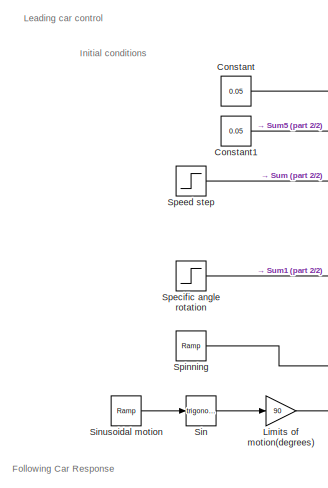
[diagram: root canvas - part 1/2, top left region]
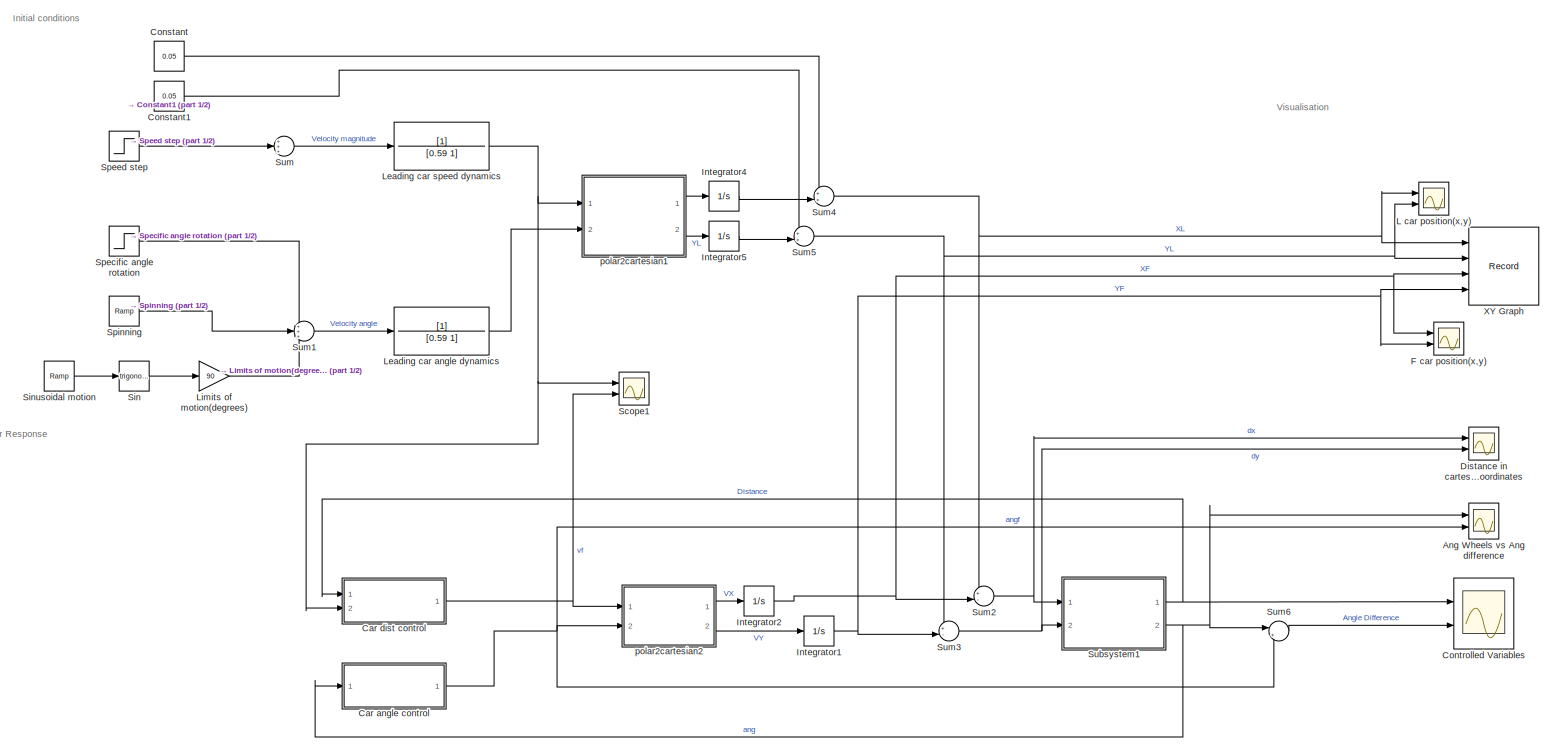
[diagram: root canvas - part 2/2, most of the canvas]
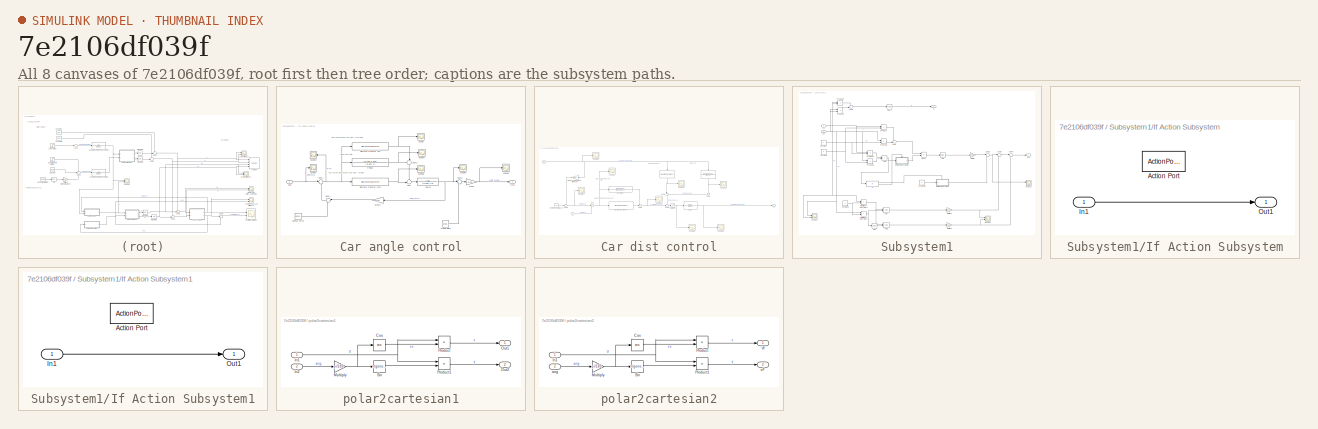
[diagram: thumbnail index - all 8 canvases of the model, root first then tree order]
MODEL slx_7e2106df039f
KIND model
CONFIG AbsTol = auto
CONFIG EnableMultiTasking = off
CONFIG FixedStep = auto
CONFIG MaxStep = auto
CONFIG MinStep = auto
CONFIG RelTol = 1e-3
CONFIG SampleTimeConstraint = Unconstrained
CONFIG SolverName = VariableStepAuto
CONFIG StartTime = 0.0
CONFIG StopTime = 10
BLOCK [Scope] Ang Wheels vs Ang difference 
  Floating = off
  NumInputPorts = 2
  Ports = [2]
  ScopeSpecificationString = Simulink.scopes.TimeScopeBlockCfg('CurrentConfiguration', extmgr.ConfigurationSet(extmgr.Configuration('Core','General UI',true),extmgr.Configuration('Core','Source UI',true),extmgr.Configuration('Sources','WiredSimulink',true,'DataLoggingVariableName','ScopeData8'),extmgr.Configuration('Visuals','Time Domain',true,'SerializedDisplays',{struct('MinYLimReal','-305.14661','MaxYLimReal','233.90518','...<+1715ch>
BLOCK [SubSystem] Car angle control
  Ports = [1, 1]
  RequestExecContextInheritance = off
BLOCK [DiscreteTransferFcn] Car angle control/Discrete Transfer Fcn
  Commented = on
  Denominator = [1 -0.1677]
  InputPortMap = u0
  Numerator = [20.71 -18.86]
  Ports = [1, 1]
  SampleTime = 1/80
BLOCK [DiscreteTransferFcn] Car angle control/Discrete Transfer Fcn1
  Denominator = [1 -0.1677]
  InputPortMap = u0
  Numerator = [13.23 -12.04]
  Ports = [1, 1]
  SampleTime = 1/80
BLOCK [Outport] Car angle control/Out1
BLOCK [TransferFcn] Car angle control/P ideal
  Commented = on
  Denominator = [0.007 1]
  Numerator = [0.145 2.231]
BLOCK [Scope] Car angle control/Scope
  Floating = off
  NumInputPorts = 1
  Ports = [1]
  ScopeSpecificationString = Simulink.scopes.TimeScopeBlockCfg('CurrentConfiguration', extmgr.ConfigurationSet(extmgr.Configuration('Core','General UI',true),extmgr.Configuration('Core','Source UI',true),extmgr.Configuration('Sources','WiredSimulink',true,'DataLoggingVariableName','ScopeData2'),extmgr.Configuration('Visuals','Time Domain',true),extmgr.Configuration('Tools','Plot Navigation',true),extmgr.Configuration('Tools',...<+40ch>
BLOCK [Scope] Car angle control/Scope1
  Floating = off
  NumInputPorts = 1
  Ports = [1]
  ScopeSpecificationString = Simulink.scopes.TimeScopeBlockCfg('CurrentConfiguration', extmgr.ConfigurationSet(extmgr.Configuration('Core','General UI',true),extmgr.Configuration('Core','Source UI',true),extmgr.Configuration('Sources','WiredSimulink',true,'DataLoggingVariableName','ScopeData5'),extmgr.Configuration('Visuals','Time Domain',true,'SerializedDisplays',{struct('MinYLimReal','-15.62488','MaxYLimReal','140.62391','Y...<+1421ch>
BLOCK [Scope] Car angle control/Scope2
  Floating = off
  NameLocation = top
  NumInputPorts = 1
  Ports = [1]
  ScopeSpecificationString = Simulink.scopes.TimeScopeBlockCfg('CurrentConfiguration', extmgr.ConfigurationSet(extmgr.Configuration('Core','General UI',true),extmgr.Configuration('Core','Source UI',true),extmgr.Configuration('Sources','WiredSimulink',true,'DataLoggingVariableName','ScopeData1'),extmgr.Configuration('Visuals','Time Domain',true,'SerializedDisplays',{struct('MinYLimReal','-0.17611','MaxYLimReal','1.58497','YLab...<+1412ch>
BLOCK [Scope] Car angle control/Scope3
  Floating = off
  NumInputPorts = 1
  Ports = [1]
  ScopeSpecificationString = Simulink.scopes.TimeScopeBlockCfg('CurrentConfiguration', extmgr.ConfigurationSet(extmgr.Configuration('Core','General UI',true),extmgr.Configuration('Core','Source UI',true),extmgr.Configuration('Sources','WiredSimulink',true,'DataLoggingVariableName','ScopeData2'),extmgr.Configuration('Visuals','Time Domain',true,'SerializedDisplays',{struct('MinYLimReal','-118.01423','MaxYLimReal','117.67122','...<+1430ch>
BLOCK [Scope] Car angle control/Scope4
  Floating = off
  NumInputPorts = 1
  Ports = [1]
  ScopeSpecificationString = Simulink.scopes.TimeScopeBlockCfg('CurrentConfiguration', extmgr.ConfigurationSet(extmgr.Configuration('Core','General UI',true),extmgr.Configuration('Core','Source UI',true),extmgr.Configuration('Sources','WiredSimulink',true,'DataLoggingVariableName','ScopeData3'),extmgr.Configuration('Visuals','Time Domain',true),extmgr.Configuration('Tools','Plot Navigation',true),extmgr.Configuration('Tools',...<+40ch>
BLOCK [Scope] Car angle control/Scope5
  Floating = off
  NumInputPorts = 1
  Ports = [1]
  ScopeSpecificationString = Simulink.scopes.TimeScopeBlockCfg('CurrentConfiguration', extmgr.ConfigurationSet(extmgr.Configuration('Core','General UI',true),extmgr.Configuration('Core','Source UI',true),extmgr.Configuration('Sources','WiredSimulink',true,'DataLoggingVariableName','ScopeData4'),extmgr.Configuration('Visuals','Time Domain',true),extmgr.Configuration('Tools','Plot Navigation',true),extmgr.Configuration('Tools',...<+40ch>
BLOCK [Scope] Car angle control/Scope6
  Floating = off
  NumInputPorts = 1
  Ports = [1]
  ScopeSpecificationString = Simulink.scopes.TimeScopeBlockCfg('CurrentConfiguration', extmgr.ConfigurationSet(extmgr.Configuration('Core','General UI',true),extmgr.Configuration('Core','Source UI',true),extmgr.Configuration('Sources','WiredSimulink',true,'DataLoggingVariableName','ScopeData5'),extmgr.Configuration('Visuals','Time Domain',true),extmgr.Configuration('Tools','Plot Navigation',true),extmgr.Configuration('Tools',...<+40ch>
BLOCK [RandomNumber] Car angle control/Sensor Error
  Commented = on
  SampleTime = 1/80
  Variance = 4
BLOCK [TransferFcn] Car angle control/Servo
  Denominator = [0.065 1 0]
  Numerator = [76]
BLOCK [Gain] Car angle control/StoW
  Gain = 0.72
BLOCK [Gain] Car angle control/StoW1
  Gain = 0.72
  NameLocation = top
BLOCK [Sum] Car angle control/Sum
  Inputs = ++|
  Ports = [2, 1]
BLOCK [Sum] Car angle control/Sum1
  Inputs = |+-
  Ports = [2, 1]
BLOCK [Sum] Car angle control/Sum2
  Inputs = ++|
  NameLocation = left
  Ports = [2, 1]
BLOCK [Sum] Car angle control/Sum3
  Inputs = |++
  Ports = [2, 1]
BLOCK [Sum] Car angle control/Sum4
  Inputs = |++
  NameLocation = top
  Ports = [2, 1]
BLOCK [RandomNumber] Car angle control/Wheel Slack
  Commented = on
  SampleTime = 0.001
  Seed = 123123
  Variance = 3
BLOCK [Inport] Car angle control/ang
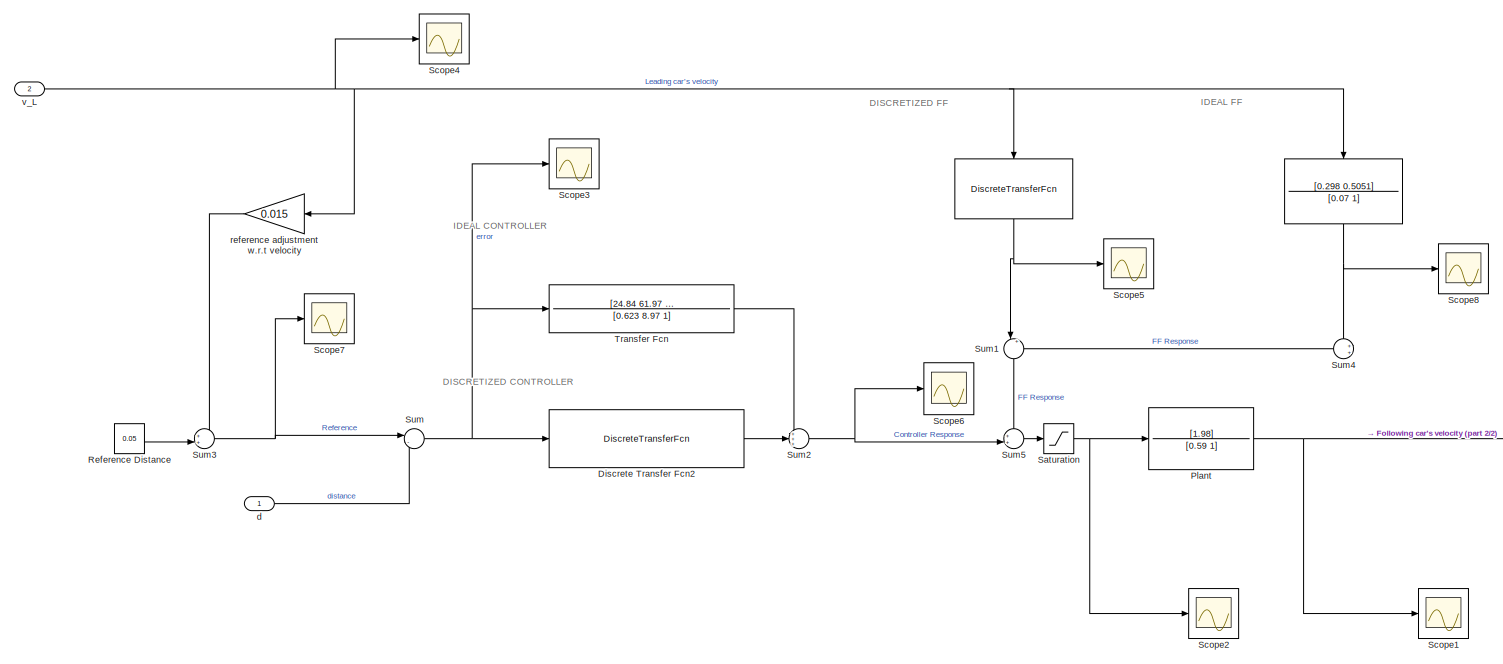
[diagram: Car dist control - part 1/2, most of the canvas]
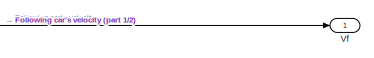
[diagram: Car dist control - part 2/2, bottom right region]
BLOCK [SubSystem] Car dist control
  Ports = [2, 1]
  RequestExecContextInheritance = off
BLOCK [TransferFcn] Car dist control/ 
  Commented = on
  Denominator = [0.07 1]
  NameLocation = right
  Numerator = [0.298 0.5051]
BLOCK [DiscreteTransferFcn] Car dist control/  
  Denominator = [1 -0.8365]
  InputPortMap = u0
  NameLocation = right
  Numerator = [4.299 -4.215]
  Ports = [1, 1]
  SampleTime = 1/80
BLOCK [DiscreteTransferFcn] Car dist control/Discrete Transfer Fcn2
  Denominator = [1 -1.835 0.8353]
  InputPortMap = u0
  Numerator = [36.99 -72.91 35.93]
  Ports = [1, 1]
  SampleTime = 1/80
BLOCK [TransferFcn] Car dist control/Plant
  Denominator = [0.59 1]
  Numerator = [1.98]
BLOCK [Constant] Car dist control/Reference Distance
  Value = 0.05
BLOCK [Saturate] Car dist control/Saturation
  LowerLimit = -8
  UpperLimit = 8
BLOCK [Scope] Car dist control/Scope1
  Floating = off
  NumInputPorts = 1
  Ports = [1]
  ScopeSpecificationString = Simulink.scopes.TimeScopeBlockCfg('CurrentConfiguration', extmgr.ConfigurationSet(extmgr.Configuration('Core','General UI',true),extmgr.Configuration('Core','Source UI',true),extmgr.Configuration('Sources','WiredSimulink',true,'DataLoggingVariableName','ScopeData2'),extmgr.Configuration('Visuals','Time Domain',true,'SerializedDisplays',{struct('MinYLimReal','-1.97884','MaxYLimReal','17.80955','YLa...<+1440ch>
BLOCK [Scope] Car dist control/Scope2
  Floating = off
  NumInputPorts = 1
  Ports = [1]
  ScopeSpecificationString = Simulink.scopes.TimeScopeBlockCfg('CurrentConfiguration', extmgr.ConfigurationSet(extmgr.Configuration('Core','General UI',true),extmgr.Configuration('Core','Source UI',true),extmgr.Configuration('Sources','WiredSimulink',true,'DataLoggingVariableName','ScopeData3'),extmgr.Configuration('Visuals','Time Domain',true,'SerializedDisplays',{struct('MinYLimReal','-0.95809','MaxYLimReal','8.62277','YLab...<+1416ch>
BLOCK [Scope] Car dist control/Scope3
  Floating = off
  NumInputPorts = 1
  Ports = [1]
  ScopeSpecificationString = Simulink.scopes.TimeScopeBlockCfg('CurrentConfiguration', extmgr.ConfigurationSet(extmgr.Configuration('Core','General UI',true),extmgr.Configuration('Core','Source UI',true),extmgr.Configuration('Sources','WiredSimulink',true,'DataLoggingVariableName','ScopeData6'),extmgr.Configuration('Visuals','Time Domain',true,'SerializedDisplays',{struct('MinYLimReal','-0.2585','MaxYLimReal','1.3178','YLabel...<+1410ch>
BLOCK [Scope] Car dist control/Scope4
  Floating = off
  NumInputPorts = 1
  Ports = [1]
  ScopeSpecificationString = Simulink.scopes.TimeScopeBlockCfg('CurrentConfiguration', extmgr.ConfigurationSet(extmgr.Configuration('Core','General UI',true),extmgr.Configuration('Core','Source UI',true),extmgr.Configuration('Sources','WiredSimulink',true,'DataLoggingVariableName','ScopeData3'),extmgr.Configuration('Visuals','Time Domain',true,'SerializedDisplays',{struct('MinYLimReal','-0.0019','MaxYLimReal','0.51712','YLabe...<+1432ch>
BLOCK [Scope] Car dist control/Scope5
  Floating = off
  NumInputPorts = 1
  Ports = [1]
  ScopeSpecificationString = Simulink.scopes.TimeScopeBlockCfg('CurrentConfiguration', extmgr.ConfigurationSet(extmgr.Configuration('Core','General UI',true),extmgr.Configuration('Core','Source UI',true),extmgr.Configuration('Sources','WiredSimulink',true,'DataLoggingVariableName','ScopeData1'),extmgr.Configuration('Visuals','Time Domain',true,'SerializedDisplays',{struct('MinYLimReal','-2.68687','MaxYLimReal','24.18188','YLa...<+1432ch>
BLOCK [Scope] Car dist control/Scope6
  Floating = off
  NumInputPorts = 1
  Ports = [1]
  ScopeSpecificationString = Simulink.scopes.TimeScopeBlockCfg('CurrentConfiguration', extmgr.ConfigurationSet(extmgr.Configuration('Core','General UI',true),extmgr.Configuration('Core','Source UI',true),extmgr.Configuration('Sources','WiredSimulink',true,'DataLoggingVariableName','ScopeData2'),extmgr.Configuration('Visuals','Time Domain',true,'SerializedDisplays',{struct('MinYLimReal','-0.72339','MaxYLimReal','0.44678','YLab...<+1433ch>
BLOCK [Scope] Car dist control/Scope7
  Floating = off
  NumInputPorts = 1
  Ports = [1]
  ScopeSpecificationString = Simulink.scopes.TimeScopeBlockCfg('CurrentConfiguration', extmgr.ConfigurationSet(extmgr.Configuration('Core','General UI',true),extmgr.Configuration('Core','Source UI',true),extmgr.Configuration('Sources','WiredSimulink',true,'DataLoggingVariableName','ScopeData3'),extmgr.Configuration('Visuals','Time Domain',true,'SerializedDisplays',{struct('MinYLimReal','-0.14125','MaxYLimReal','0.51477','YLab...<+1420ch>
BLOCK [Scope] Car dist control/Scope8
  Floating = off
  NumInputPorts = 1
  Ports = [1]
  ScopeSpecificationString = Simulink.scopes.TimeScopeBlockCfg('CurrentConfiguration', extmgr.ConfigurationSet(extmgr.Configuration('Core','General UI',true),extmgr.Configuration('Core','Source UI',true),extmgr.Configuration('Sources','WiredSimulink',true,'DataLoggingVariableName','ScopeData1'),extmgr.Configuration('Visuals','Time Domain',true,'SerializedDisplays',{struct('MinYLimReal','-2.68687','MaxYLimReal','24.18188','YLa...<+1432ch>
BLOCK [Sum] Car dist control/Sum
  Inputs = |-+
  Ports = [2, 1]
BLOCK [Sum] Car dist control/Sum1
  Inputs = |++
  NameLocation = left
  Ports = [2, 1]
BLOCK [Sum] Car dist control/Sum2
  Inputs = +++
  Ports = [3, 1]
BLOCK [Sum] Car dist control/Sum3
  Inputs = ++|
  Ports = [2, 1]
BLOCK [Sum] Car dist control/Sum4
  Inputs = ++|
  NameLocation = top
  Ports = [2, 1]
BLOCK [Sum] Car dist control/Sum5
  Inputs = ++|
  Ports = [2, 1]
BLOCK [TransferFcn] Car dist control/Transfer Fcn
  Commented = on
  Denominator = [0.623 8.97 1]
  Numerator = [24.84 61.97 33.68]
BLOCK [Outport] Car dist control/Vf
BLOCK [Inport] Car dist control/d
BLOCK [Gain] Car dist control/reference adjustment w.r.t velocity
  Gain = 0.015
  NameLocation = top
BLOCK [Inport] Car dist control/v_L
  Port = 2
BLOCK [Constant] Constant
  Value = 0.05
BLOCK [Constant] Constant1
  Commented = on
  Value = 0.05
BLOCK [Scope] Controlled Variables
  Floating = off
  NumInputPorts = 2
  Ports = [2]
  ScopeSpecificationString = Simulink.scopes.TimeScopeBlockCfg('CurrentConfiguration', extmgr.ConfigurationSet(extmgr.Configuration('Core','General UI',true),extmgr.Configuration('Core','Source UI',true),extmgr.Configuration('Sources','WiredSimulink',true,'DataLoggingVariableName','ScopeData1'),extmgr.Configuration('Visuals','Time Domain',true,'SerializedDisplays',{struct('MinYLimReal','-0.02482','MaxYLimReal','0.22342','YLab...<+1718ch>
BLOCK [Scope] Distance in cartessian coordinates
  Floating = off
  NumInputPorts = 2
  Ports = [2]
  ScopeSpecificationString = Simulink.scopes.TimeScopeBlockCfg('CurrentConfiguration', extmgr.ConfigurationSet(extmgr.Configuration('Core','General UI',true),extmgr.Configuration('Core','Source UI',true),extmgr.Configuration('Sources','WiredSimulink',true,'DataLoggingVariableName','ScopeData5'),extmgr.Configuration('Visuals','Time Domain',true,'SerializedDisplays',{struct('MinYLimReal','-2.52714','MaxYLimReal','3.20409','YLab...<+1441ch>
BLOCK [Scope] F car position(x,y)
  Floating = off
  NumInputPorts = 2
  Ports = [2]
  ScopeSpecificationString = Simulink.scopes.TimeScopeBlockCfg('CurrentConfiguration', extmgr.ConfigurationSet(extmgr.Configuration('Core','General UI',true),extmgr.Configuration('Core','Source UI',true),extmgr.Configuration('Sources','WiredSimulink',true,'DataLoggingVariableName','ScopeData7'),extmgr.Configuration('Visuals','Time Domain',true,'SerializedDisplays',{struct('MinYLimReal','-12.38209','MaxYLimReal','111.43885','Y...<+1497ch>
BLOCK [Integrator] Integrator1
  Ports = [1, 1]
BLOCK [Integrator] Integrator2
  Ports = [1, 1]
BLOCK [Integrator] Integrator4
  Ports = [1, 1]
BLOCK [Integrator] Integrator5
  Ports = [1, 1]
BLOCK [Scope] L car position(x,y)
  Floating = off
  NameLocation = top
  NumInputPorts = 2
  Ports = [2]
  ScopeSpecificationString = Simulink.scopes.TimeScopeBlockCfg('CurrentConfiguration', extmgr.ConfigurationSet(extmgr.Configuration('Core','General UI',true),extmgr.Configuration('Core','Source UI',true),extmgr.Configuration('Sources','WiredSimulink',true,'DataLoggingVariableName','ScopeData6'),extmgr.Configuration('Visuals','Time Domain',true,'SerializedDisplays',{struct('MinYLimReal','-11.76875','MaxYLimReal','105.91875','Y...<+1524ch>
BLOCK [TransferFcn] Leading car angle dynamics
  Denominator = [0.59 1]
BLOCK [TransferFcn] Leading car speed dynamics
  Denominator = [0.59 1]
BLOCK [Gain] Limits of motion(degrees)
  Gain = 90
BLOCK [Scope] Scope1
  Floating = off
  NumInputPorts = 2
  Ports = [2]
  ScopeSpecificationString = Simulink.scopes.TimeScopeBlockCfg('CurrentConfiguration', extmgr.ConfigurationSet(extmgr.Configuration('Core','General UI',true),extmgr.Configuration('Core','Source UI',true),extmgr.Configuration('Sources','WiredSimulink',true,'DataLoggingVariableName','ScopeData4'),extmgr.Configuration('Visuals','Time Domain',true,'SerializedDisplays',{struct('MinYLimReal','-1.40878','MaxYLimReal','12.67899','YLa...<+1394ch>
BLOCK [Trigonometry] Sin
  Ports = [1, 1]
BLOCK [Reference] Sinusoidal motion  REF=simulink/Sources/Ramp
  Commented = on
  Ports = [0, 1]
  SourceBlock = simulink/Sources/Ramp
  SourceProductBaseCode = SL
  SourceType = Ramp
BLOCK [Step] Specific angle rotation
  After = 5
  Commented = on
  SampleTime = 0
  Time = 3
BLOCK [Step] Speed step
  After = 10
  SampleTime = 1
  Time = 0
BLOCK [Reference] Spinning  REF=simulink/Sources/Ramp
  Commented = on
  Ports = [0, 1]
  SourceBlock = simulink/Sources/Ramp
  SourceProductBaseCode = SL
  SourceType = Ramp
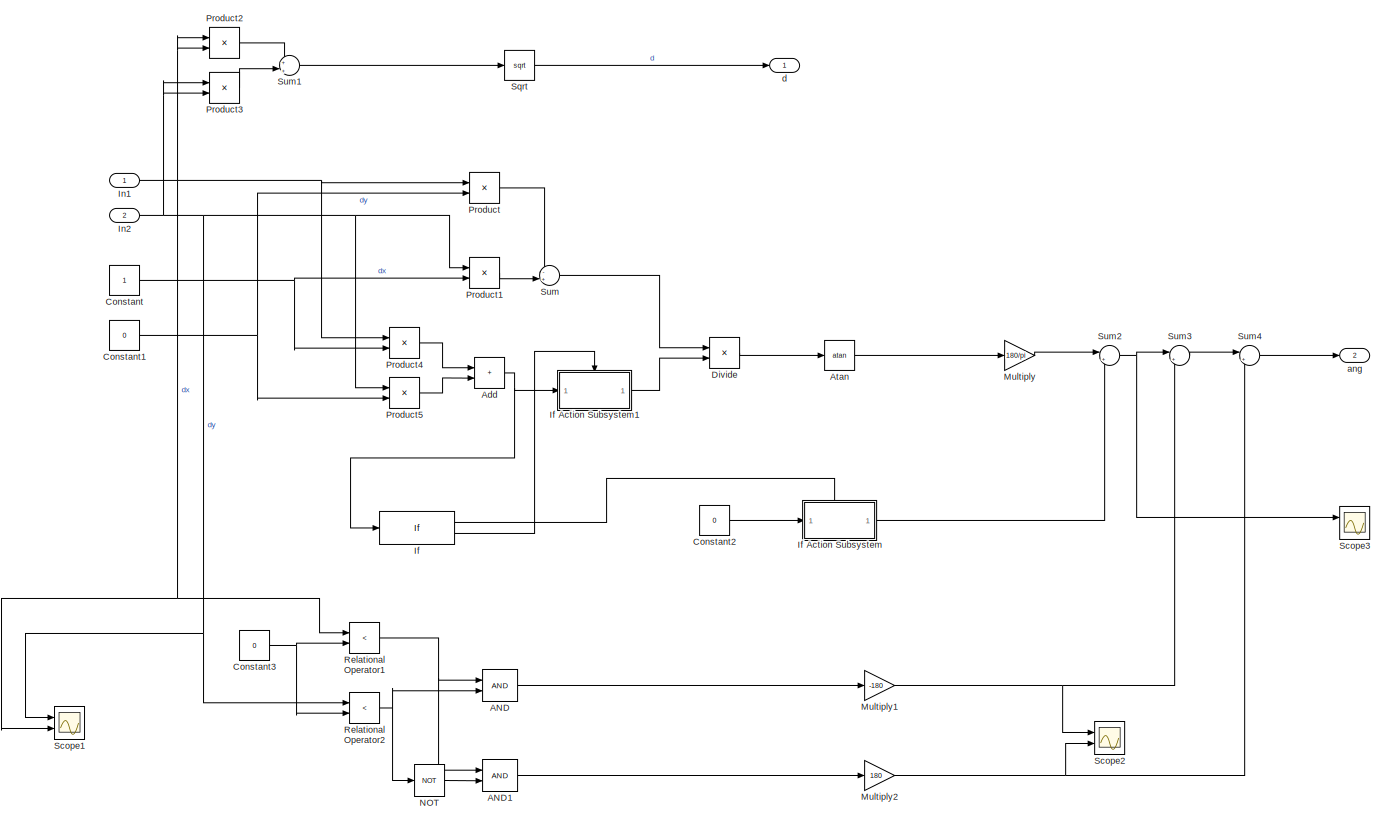
[diagram: Subsystem1 - part 1/1, most of the canvas]
BLOCK [SubSystem] Subsystem1
  Ports = [2, 2]
  RequestExecContextInheritance = off
BLOCK [Logic] Subsystem1/AND
  AllPortsSameDT = off
  IconShape = distinctive
  OutDataTypeStr = boolean
  Ports = [2, 1]
BLOCK [Logic] Subsystem1/AND1
  AllPortsSameDT = off
  IconShape = distinctive
  OutDataTypeStr = boolean
  Ports = [2, 1]
BLOCK [Sum] Subsystem1/Add
  IconShape = rectangular
  Ports = [2, 1]
BLOCK [Trigonometry] Subsystem1/Atan
  Operator = atan
  Ports = [1, 1]
BLOCK [Constant] Subsystem1/Constant
BLOCK [Constant] Subsystem1/Constant1
  Value = 0
BLOCK [Constant] Subsystem1/Constant2
  Value = 0
BLOCK [Constant] Subsystem1/Constant3
  Value = 0
BLOCK [Product] Subsystem1/Divide
  Inputs = */
  Ports = [2, 1]
BLOCK [If] Subsystem1/If
  IfExpression = u1 == 0
  Ports = [1, 2]
BLOCK [SubSystem] Subsystem1/If Action Subsystem
  Ports = [1, 1, 0, 0, 0, 0, 0, 1]
  RequestExecContextInheritance = off
  TreatAsAtomicUnit = on
BLOCK [ActionPort] Subsystem1/If Action Subsystem/Action Port
  ActionPortLabel = if(u1 == 0)
BLOCK [Inport] Subsystem1/If Action Subsystem/In1
BLOCK [Outport] Subsystem1/If Action Subsystem/Out1
BLOCK [SubSystem] Subsystem1/If Action Subsystem1
  Ports = [1, 1, 0, 0, 0, 0, 0, 1]
  RequestExecContextInheritance = off
  TreatAsAtomicUnit = on
BLOCK [ActionPort] Subsystem1/If Action Subsystem1/Action Port
  ActionPortLabel = else
BLOCK [Inport] Subsystem1/If Action Subsystem1/In1
BLOCK [Outport] Subsystem1/If Action Subsystem1/Out1
BLOCK [Inport] Subsystem1/In1
  IconDisplay = Signal name
BLOCK [Inport] Subsystem1/In2
  IconDisplay = Signal name
  Port = 2
BLOCK [Gain] Subsystem1/Multiply
  Gain = 180/pi
BLOCK [Gain] Subsystem1/Multiply1
  Gain = -180
BLOCK [Gain] Subsystem1/Multiply2
  Gain = 180
BLOCK [Logic] Subsystem1/NOT
  AllPortsSameDT = off
  IconShape = distinctive
  Operator = NOT
  OutDataTypeStr = boolean
  Ports = [1, 1]
BLOCK [Product] Subsystem1/Product
  Ports = [2, 1]
BLOCK [Product] Subsystem1/Product1
  Ports = [2, 1]
BLOCK [Product] Subsystem1/Product2
  Ports = [2, 1]
BLOCK [Product] Subsystem1/Product3
  Ports = [2, 1]
BLOCK [Product] Subsystem1/Product4
  Ports = [2, 1]
BLOCK [Product] Subsystem1/Product5
  Ports = [2, 1]
BLOCK [RelationalOperator] Subsystem1/Relational Operator1
  InputSameDT = off
  Operator = <
  Ports = [2, 1]
  RndMeth = Simplest
BLOCK [RelationalOperator] Subsystem1/Relational Operator2
  InputSameDT = off
  Operator = <
  Ports = [2, 1]
  RndMeth = Simplest
BLOCK [Scope] Subsystem1/Scope1
  Floating = off
  NumInputPorts = 2
  Ports = [2]
  ScopeSpecificationString = Simulink.scopes.TimeScopeBlockCfg('CurrentConfiguration', extmgr.ConfigurationSet(extmgr.Configuration('Core','General UI',true),extmgr.Configuration('Core','Source UI',true),extmgr.Configuration('Sources','WiredSimulink',true,'DataLoggingVariableName','ScopeData5'),extmgr.Configuration('Visuals','Time Domain',true,'SerializedDisplays',{struct('MinYLimReal','-0.05815','MaxYLimReal','0.52337','YLab...<+1439ch>
BLOCK [Scope] Subsystem1/Scope2
  Floating = off
  NumInputPorts = 2
  Ports = [2]
  ScopeSpecificationString = Simulink.scopes.TimeScopeBlockCfg('CurrentConfiguration', extmgr.ConfigurationSet(extmgr.Configuration('Core','General UI',true),extmgr.Configuration('Core','Source UI',true),extmgr.Configuration('Sources','WiredSimulink',true,'DataLoggingVariableName','ScopeData4'),extmgr.Configuration('Visuals','Time Domain',true,'SerializedDisplays',{struct('MinYLimReal','-1.00000','MaxYLimReal','1.00000','YLab...<+1454ch>
BLOCK [Scope] Subsystem1/Scope3
  Floating = off
  NumInputPorts = 2
  Ports = [2]
  ScopeSpecificationString = Simulink.scopes.TimeScopeBlockCfg('CurrentConfiguration', extmgr.ConfigurationSet(extmgr.Configuration('Core','General UI',true),extmgr.Configuration('Core','Source UI',true),extmgr.Configuration('Sources','WiredSimulink',true,'DataLoggingVariableName','ScopeData6'),extmgr.Configuration('Visuals','Time Domain',true,'SerializedDisplays',{struct('MinYLimReal','-82.82495','MaxYLimReal','73.8447','YLa...<+1453ch>
BLOCK [Sqrt] Subsystem1/Sqrt
BLOCK [Sum] Subsystem1/Sum
  Inputs = -+|
  Ports = [2, 1]
BLOCK [Sum] Subsystem1/Sum1
  Inputs = +|+
  Ports = [2, 1]
BLOCK [Sum] Subsystem1/Sum2
  Inputs = |++
  Ports = [2, 1]
BLOCK [Sum] Subsystem1/Sum3
  Inputs = |++
  Ports = [2, 1]
BLOCK [Sum] Subsystem1/Sum4
  Inputs = |++
  Ports = [2, 1]
BLOCK [Outport] Subsystem1/ang
  IconDisplay = Signal name
  Port = 2
BLOCK [Outport] Subsystem1/d
  IconDisplay = Signal name
BLOCK [Sum] Sum
  Inputs = +++
  Ports = [3, 1]
BLOCK [Sum] Sum1
  Inputs = +++
  Ports = [3, 1]
BLOCK [Sum] Sum2
  Inputs = +-|
  Ports = [2, 1]
BLOCK [Sum] Sum3
  Inputs = +-|
  Ports = [2, 1]
BLOCK [Sum] Sum4
  Inputs = ++|
  Ports = [2, 1]
BLOCK [Sum] Sum5
  Inputs = ++|
  Ports = [2, 1]
BLOCK [Sum] Sum6
  Inputs = |+-
  Ports = [2, 1]
BLOCK [Record] XY Graph
  CompatibilityTag = XY
  FileSettingsInternal = {"entries":[{"content":{"excelSettings":{"content":{},"type":"Streamout.ExcelSettings"}},"type":"Streamout.FileSettingStorage","uuid":"1f241d09-22e1-462e-9762-0058fec7610a"}],"packageUris":["http://schema.mathworks.com/mf0/streamout_blocks/R2020a"],"version":"1.0"}
  Layout = [1 1]
  Ports = [4]
  SignalsInternal = {"entries":[{"content":{"signals":[{"content":{"blockPath":["platooning_sim/XY Graph"],"channel":[],"dimensions":[1],"domain":"platooning_sim/XY Graph","lineColor":"#a2142f","plots":[1],"port":1,"sid":[""],"signalID":235,"signalName":"XL"},"type":"RecordBlkView.Signal","uuid":"b307e947-2b89-47f2-ab75-c2c398885e15"},{"content":{"blockPath":["platooning_sim/XY Graph"],"channel":[],"dimensions":[1],"...<+939ch>
  VisualizationBindings = {"xyplotplugin":{"info":[{"series":[{"bindingParametersList":[{"parameter":"X-Axis","signalID":235,"signalName":"XL"},{"parameter":"Y-Axis","signalID":239,"signalName":"YL"}],"seriesID":56638},{"bindingParametersList":[{"parameter":"X-Axis","signalID":243,"signalName":"XF"},{"parameter":"Y-Axis","signalID":247,"signalName":"YF"}],"seriesID":17436}],"subplotID":1}]}}
BLOCK [SubSystem] polar2cartesian1
  Ports = [2, 2]
  RequestExecContextInheritance = off
BLOCK [Trigonometry] polar2cartesian1/Cos
  Operator = cos
  Ports = [1, 1]
BLOCK [Inport] polar2cartesian1/In1
  IconDisplay = Signal name
BLOCK [Inport] polar2cartesian1/In2
  IconDisplay = Signal name
  Port = 2
BLOCK [Gain] polar2cartesian1/Multiply
  Gain = pi/180
BLOCK [Outport] polar2cartesian1/Out1
  IconDisplay = Signal name
BLOCK [Outport] polar2cartesian1/Out2
  IconDisplay = Signal name
  Port = 2
BLOCK [Product] polar2cartesian1/Product
  Ports = [2, 1]
BLOCK [Product] polar2cartesian1/Product1
  Ports = [2, 1]
BLOCK [Trigonometry] polar2cartesian1/Sin
  Ports = [1, 1]
BLOCK [SubSystem] polar2cartesian2
  Ports = [2, 2]
  RequestExecContextInheritance = off
BLOCK [Trigonometry] polar2cartesian2/Cos
  Operator = cos
  Ports = [1, 1]
BLOCK [Inport] polar2cartesian2/In1
  IconDisplay = Signal name
BLOCK [Gain] polar2cartesian2/Multiply
  Gain = pi/180
BLOCK [Product] polar2cartesian2/Product
  Ports = [2, 1]
BLOCK [Product] polar2cartesian2/Product1
  Ports = [2, 1]
BLOCK [Trigonometry] polar2cartesian2/Sin
  Ports = [1, 1]
BLOCK [Outport] polar2cartesian2/Vf
  IconDisplay = Signal name
BLOCK [Inport] polar2cartesian2/ang
  IconDisplay = Signal name
  Port = 2
BLOCK [Outport] polar2cartesian2/vF
  IconDisplay = Signal name
  Port = 2
ANNOTATION (root): Following Car Response
ANNOTATION (root): Initial conditions
ANNOTATION (root): Leading car control
ANNOTATION (root): Visualisation
ANNOTATION Car angle control: Corrected discretized controller (stable)
ANNOTATION Car angle control: Discretized ideal controller (unstable)
ANNOTATION Car angle control: Ideal controller
ANNOTATION Car dist control: DISCRETIZED CONTROLLER
ANNOTATION Car dist control: DISCRETIZED FF
ANNOTATION Car dist control: IDEAL CONTROLLER
ANNOTATION Car dist control: IDEAL FF
NET Car angle control/Discrete Transfer Fcn1:1 -> Car angle control/Scope5:1, Car angle control/Sum:2
NET Car angle control/Discrete Transfer Fcn:1 -> Car angle control/Scope:1, Car angle control/Sum2:2
NET Car angle control/P ideal:1 -> Car angle control/Scope4:1, Car angle control/Sum2:1
LINE Car angle control/Sensor Error:1 -> Car angle control/Sum4:2
NET Car angle control/Servo:1 -> Car angle control/Scope6:1, Car angle control/StoW1:1, Car angle control/Sum3:1
LINE Car angle control/StoW1:1 -> Car angle control/Sum4:1
NET Car angle control/StoW:1 -> Car angle control/Out1:1, Car angle control/Scope3:1
NET Car angle control/Sum1:1 -> Car angle control/Discrete Transfer Fcn1:1, Car angle control/Discrete Transfer Fcn:1, Car angle control/P ideal:1, Car angle control/Scope2:1
LINE Car angle control/Sum2:1 -> Car angle control/Sum:1
LINE Car angle control/Sum3:1 -> Car angle control/StoW:1
LINE Car angle control/Sum4:1 -> Car angle control/Sum1:2
LINE Car angle control/Sum:1 -> Car angle control/Servo:1
LINE Car angle control/Wheel Slack:1 -> Car angle control/Sum3:2
NET Car angle control/ang:1 -> Car angle control/Scope1:1, Car angle control/Sum1:1
NET Car angle control:1 -> Ang Wheels vs Ang difference :2, Sum6:2, polar2cartesian2:2
NET Car dist control/  :1 -> Car dist control/Scope5:1, Car dist control/Sum1:1
NET Car dist control/ :1 -> Car dist control/Scope8:1, Car dist control/Sum4:1
LINE Car dist control/Discrete Transfer Fcn2:1 -> Car dist control/Sum2:2
NET Car dist control/Plant:1 -> Car dist control/Scope1:1, Car dist control/Vf:1
LINE Car dist control/Reference Distance:1 -> Car dist control/Sum3:2
NET Car dist control/Saturation:1 -> Car dist control/Plant:1, Car dist control/Scope2:1
LINE Car dist control/Sum1:1 -> Car dist control/Sum5:1
NET Car dist control/Sum2:1 -> Car dist control/Scope6:1, Car dist control/Sum5:2
NET Car dist control/Sum3:1 -> Car dist control/Scope7:1, Car dist control/Sum:1
LINE Car dist control/Sum4:1 -> Car dist control/Sum1:2
LINE Car dist control/Sum5:1 -> Car dist control/Saturation:1
NET Car dist control/Sum:1 -> Car dist control/Discrete Transfer Fcn2:1, Car dist control/Scope3:1, Car dist control/Transfer Fcn:1
LINE Car dist control/Transfer Fcn:1 -> Car dist control/Sum2:1
LINE Car dist control/d:1 -> Car dist control/Sum:2
LINE Car dist control/reference adjustment w.r.t velocity:1 -> Car dist control/Sum3:1
NET Car dist control/v_L:1 -> Car dist control/  :1, Car dist control/ :1, Car dist control/Scope4:1, Car dist control/reference adjustment w.r.t velocity:1
NET Car dist control:1 -> Scope1:2, polar2cartesian2:1
LINE Constant1:1 -> Sum5:1
LINE Constant:1 -> Sum4:1
NET Integrator1:1 -> F car position(x,y):2, Sum3:2, XY Graph:4
NET Integrator2:1 -> F car position(x,y):1, Sum2:2, XY Graph:3
LINE Integrator4:1 -> Sum4:2
LINE Integrator5:1 -> Sum5:2
LINE Leading car angle dynamics:1 -> polar2cartesian1:2
NET Leading car speed dynamics:1 -> Car dist control:2, Scope1:1, polar2cartesian1:1
LINE Limits of motion(degrees):1 -> Sum1:3
LINE Sin:1 -> Limits of motion(degrees):1
LINE Sinusoidal motion:1 -> Sin:1
LINE Specific angle rotation:1 -> Sum1:1
LINE Speed step:1 -> Sum:2
LINE Spinning:1 -> Sum1:2
LINE Subsystem1/AND1:1 -> Subsystem1/Multiply2:1
LINE Subsystem1/AND:1 -> Subsystem1/Multiply1:1
NET Subsystem1/Add:1 -> Subsystem1/If Action Subsystem1:1, Subsystem1/If:1
LINE Subsystem1/Atan:1 -> Subsystem1/Multiply:1
NET Subsystem1/Constant1:1 -> Subsystem1/Product5:2, Subsystem1/Product:2
LINE Subsystem1/Constant2:1 -> Subsystem1/If Action Subsystem:1
NET Subsystem1/Constant3:1 -> Subsystem1/Relational Operator1:2, Subsystem1/Relational Operator2:2
NET Subsystem1/Constant:1 -> Subsystem1/Product1:2, Subsystem1/Product4:2
LINE Subsystem1/Divide:1 -> Subsystem1/Atan:1
LINE Subsystem1/If Action Subsystem/In1:1 -> Subsystem1/If Action Subsystem/Out1:1
LINE Subsystem1/If Action Subsystem1/In1:1 -> Subsystem1/If Action Subsystem1/Out1:1
LINE Subsystem1/If Action Subsystem1:1 -> Subsystem1/Divide:2
LINE Subsystem1/If Action Subsystem:1 -> Subsystem1/Sum2:2
LINE Subsystem1/If:1 -> Subsystem1/If Action Subsystem:ifaction
LINE Subsystem1/If:2 -> Subsystem1/If Action Subsystem1:ifaction
NET Subsystem1/In1:1 -> Subsystem1/Product2:1, Subsystem1/Product2:2, Subsystem1/Product4:1, Subsystem1/Product:1, Subsystem1/Relational Operator1:1, Subsystem1/Scope1:2
NET Subsystem1/In2:1 -> Subsystem1/Product1:1, Subsystem1/Product3:1, Subsystem1/Product3:2, Subsystem1/Product5:1, Subsystem1/Relational Operator2:1, Subsystem1/Scope1:1
NET Subsystem1/Multiply1:1 -> Subsystem1/Scope2:1, Subsystem1/Sum3:2
NET Subsystem1/Multiply2:1 -> Subsystem1/Scope2:2, Subsystem1/Sum4:2
LINE Subsystem1/Multiply:1 -> Subsystem1/Sum2:1
LINE Subsystem1/NOT:1 -> Subsystem1/AND1:2
LINE Subsystem1/Product1:1 -> Subsystem1/Sum:2
LINE Subsystem1/Product2:1 -> Subsystem1/Sum1:1
LINE Subsystem1/Product3:1 -> Subsystem1/Sum1:2
LINE Subsystem1/Product4:1 -> Subsystem1/Add:1
LINE Subsystem1/Product5:1 -> Subsystem1/Add:2
LINE Subsystem1/Product:1 -> Subsystem1/Sum:1
NET Subsystem1/Relational Operator1:1 -> Subsystem1/AND1:1, Subsystem1/AND:1
NET Subsystem1/Relational Operator2:1 -> Subsystem1/AND:2, Subsystem1/NOT:1
LINE Subsystem1/Sqrt:1 -> Subsystem1/d:1
LINE Subsystem1/Sum1:1 -> Subsystem1/Sqrt:1
NET Subsystem1/Sum2:1 -> Subsystem1/Scope3:1, Subsystem1/Sum3:1
LINE Subsystem1/Sum3:1 -> Subsystem1/Sum4:1
LINE Subsystem1/Sum4:1 -> Subsystem1/ang:1
LINE Subsystem1/Sum:1 -> Subsystem1/Divide:1
NET Subsystem1:1 -> Car dist control:1, Controlled Variables:1
NET Subsystem1:2 -> Ang Wheels vs Ang difference :1, Car angle control:1, Sum6:1
LINE Sum1:1 -> Leading car angle dynamics:1
NET Sum2:1 -> Distance in cartessian coordinates:1, Subsystem1:1
NET Sum3:1 -> Distance in cartessian coordinates:2, Subsystem1:2
NET Sum4:1 -> L car position(x,y):1, Sum2:1, XY Graph:1
NET Sum5:1 -> L car position(x,y):2, Sum3:1, XY Graph:2
LINE Sum6:1 -> Controlled Variables:2
LINE Sum:1 -> Leading car speed dynamics:1
LINE polar2cartesian1/Cos:1 -> polar2cartesian1/Product:2
NET polar2cartesian1/In1:1 -> polar2cartesian1/Product1:1, polar2cartesian1/Product:1
LINE polar2cartesian1/In2:1 -> polar2cartesian1/Multiply:1
NET polar2cartesian1/Multiply:1 -> polar2cartesian1/Cos:1, polar2cartesian1/Sin:1
LINE polar2cartesian1/Product1:1 -> polar2cartesian1/Out2:1
LINE polar2cartesian1/Product:1 -> polar2cartesian1/Out1:1
LINE polar2cartesian1/Sin:1 -> polar2cartesian1/Product1:2
LINE polar2cartesian1:1 -> Integrator4:1
LINE polar2cartesian1:2 -> Integrator5:1
LINE polar2cartesian2/Cos:1 -> polar2cartesian2/Product:2
NET polar2cartesian2/In1:1 -> polar2cartesian2/Product1:1, polar2cartesian2/Product:1
NET polar2cartesian2/Multiply:1 -> polar2cartesian2/Cos:1, polar2cartesian2/Sin:1
LINE polar2cartesian2/Product1:1 -> polar2cartesian2/vF:1
LINE polar2cartesian2/Product:1 -> polar2cartesian2/Vf:1
LINE polar2cartesian2/Sin:1 -> polar2cartesian2/Product1:2
LINE polar2cartesian2/ang:1 -> polar2cartesian2/Multiply:1
LINE polar2cartesian2:1 -> Integrator2:1
LINE polar2cartesian2:2 -> Integrator1:1
note: NET lines group one-source signal fan-out (src -> all destinations, sorted); 1:1 wires keep LINE
